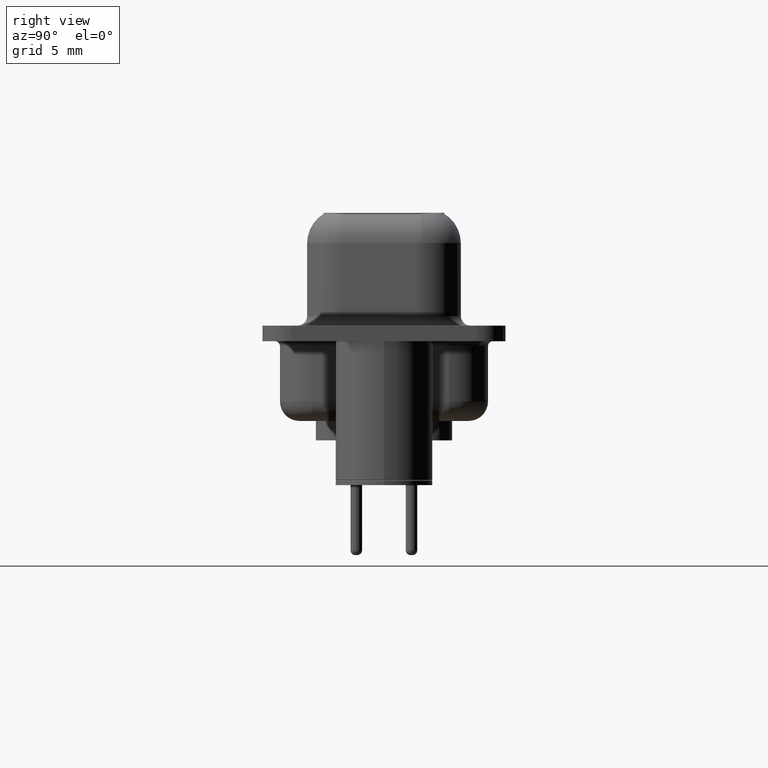
[diagram: clean part render]
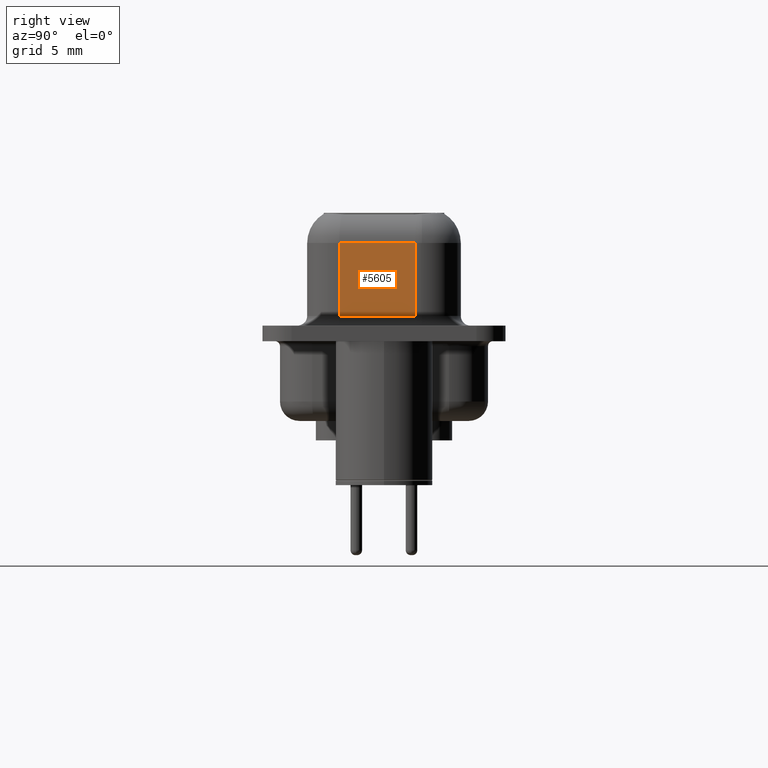
[diagram: same view with one face highlighted and labeled with its STEP entity id]
A machine part, right view. The second image highlights one B-rep face of the part: STEP entity #5605.
In plain terms, the highlighted planar face has unit normal (-0.9848, 0.1736, 0).
Its self-contained STEP definition (entity closure, byte-faithful):
#706 = FACE_OUTER_BOUND ( 'NONE', #9797, .T. ) ;
#1642 = VERTEX_POINT ( 'NONE', #9510 ) ;
#1783 = DIRECTION ( 'NONE',  ( -0.0000000000000000000, -0.0000000000000000000, -1.000000000000000000 ) ) ;
#2495 = CARTESIAN_POINT ( 'NONE',  ( 20.61961550602443083, 1.602703644666149563, 4.650000000000000355 ) ) ;
#3098 = VERTEX_POINT ( 'NONE', #11010 ) ;
#3529 = DIRECTION ( 'NONE',  ( -0.0000000000000000000, -0.0000000000000000000, -1.000000000000000000 ) ) ;
#4081 = CARTESIAN_POINT ( 'NONE',  ( 20.61961550602443083, 1.602703644666149563, 6.400000000000000355 ) ) ;
#4451 = EDGE_CURVE ( 'NONE', #3098, #1642, #13004, .T. ) ;
#5088 = CARTESIAN_POINT ( 'NONE',  ( 19.93194028126144346, -2.297296355333849238, 0.8999999999999998002 ) ) ;
#5090 = DIRECTION ( 'NONE',  ( 0.1736481776669242527, 0.9848077530122092416, -0.0000000000000000000 ) ) ;
#5479 = ORIENTED_EDGE ( 'NONE', *, *, #4451, .F. ) ;
#5605 = ADVANCED_FACE ( 'NONE', ( #706 ), #14585, .F. ) ;
#5675 = CARTESIAN_POINT ( 'NONE',  ( 20.61961550602443083, 1.602703644666149563, 6.400000000000000355 ) ) ;
#5751 = DIRECTION ( 'NONE',  ( -0.9848077530122092416, 0.1736481776669242527, 0.0000000000000000000 ) ) ;
#6028 = ORIENTED_EDGE ( 'NONE', *, *, #7789, .T. ) ;
#7235 = VERTEX_POINT ( 'NONE', #10030 ) ;
#7303 = VECTOR ( 'NONE', #1783, 1000.000000000000000 ) ;
#7338 = EDGE_CURVE ( 'NONE', #3098, #7235, #9865, .T. ) ;
#7493 = DIRECTION ( 'NONE',  ( -0.1736481776669242527, -0.9848077530122092416, -0.0000000000000000000 ) ) ;
#7789 = EDGE_CURVE ( 'NONE', #7235, #16069, #9753, .T. ) ;
#8200 = VECTOR ( 'NONE', #5090, 999.9999999999998863 ) ;
#9510 = CARTESIAN_POINT ( 'NONE',  ( 20.61961550602443083, 1.602703644666149563, 0.8999999999999998002 ) ) ;
#9753 = LINE ( 'NONE', #13599, #9961 ) ;
#9797 = EDGE_LOOP ( 'NONE', ( #5479, #12949, #6028, #14862 ) ) ;
#9865 = LINE ( 'NONE', #2495, #10463 ) ;
#9961 = VECTOR ( 'NONE', #3529, 1000.000000000000000 ) ;
#10030 = CARTESIAN_POINT ( 'NONE',  ( 19.93194028126144346, -2.297296355333849238, 4.650000000000000355 ) ) ;
#10091 = LINE ( 'NONE', #14731, #8200 ) ;
#10463 = VECTOR ( 'NONE', #7493, 999.9999999999998863 ) ;
#11010 = CARTESIAN_POINT ( 'NONE',  ( 20.61961550602443083, 1.602703644666149563, 4.650000000000000355 ) ) ;
#12929 = EDGE_CURVE ( 'NONE', #16069, #1642, #10091, .T. ) ;
#12949 = ORIENTED_EDGE ( 'NONE', *, *, #7338, .T. ) ;
#13004 = LINE ( 'NONE', #4081, #7303 ) ;
#13599 = CARTESIAN_POINT ( 'NONE',  ( 19.93194028126144346, -2.297296355333849238, 6.400000000000000355 ) ) ;
#13850 = AXIS2_PLACEMENT_3D ( 'NONE', #5675, #5751, #14425 ) ;
#14425 = DIRECTION ( 'NONE',  ( -0.1736481776669242527, -0.9848077530122092416, 0.0000000000000000000 ) ) ;
#14585 = PLANE ( 'NONE',  #13850 ) ;
#14731 = CARTESIAN_POINT ( 'NONE',  ( 20.61961550602443083, 1.602703644666149563, 0.8999999999999998002 ) ) ;
#14862 = ORIENTED_EDGE ( 'NONE', *, *, #12929, .T. ) ;
#16069 = VERTEX_POINT ( 'NONE', #5088 ) ;